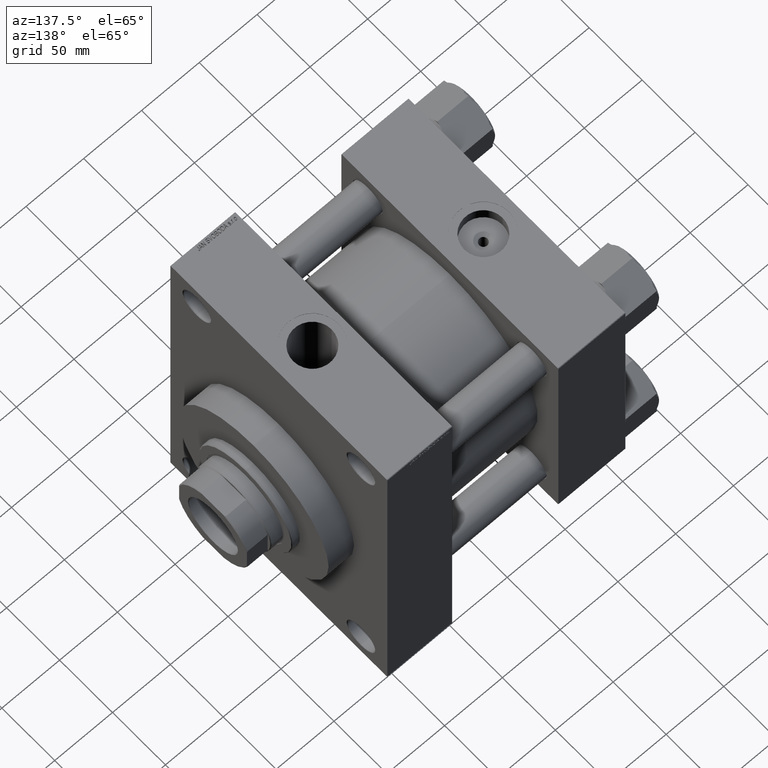
[diagram: clean part render]
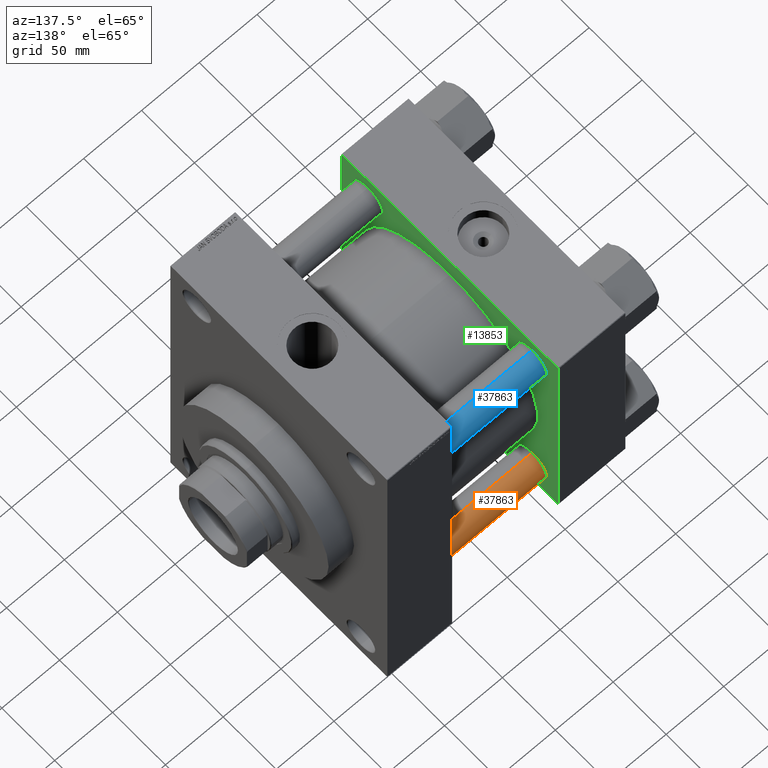
[diagram: same view with three faces highlighted in distinct colors, each labeled with its STEP entity id]
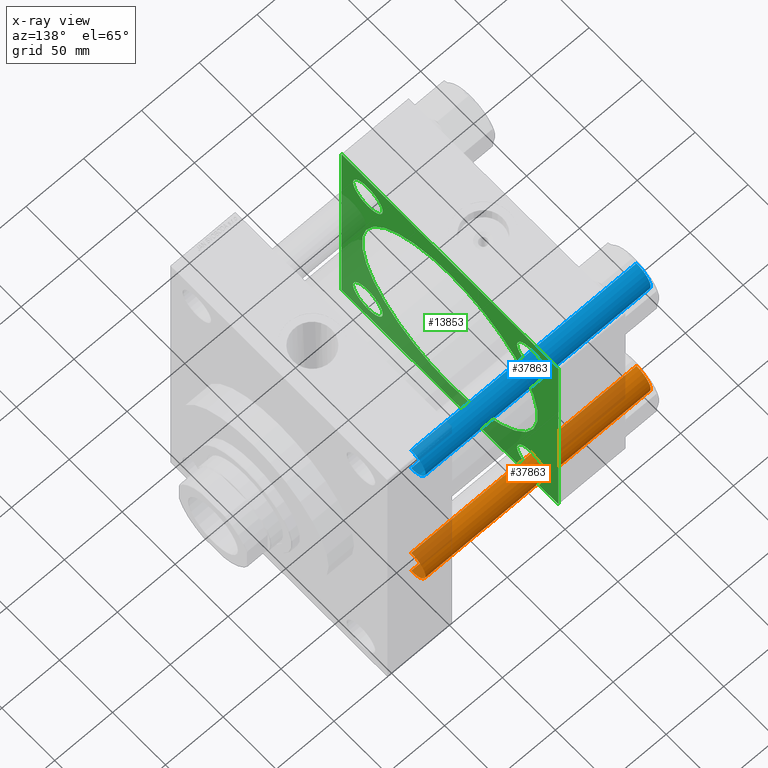
[diagram: x-ray of the same camera — body ghosted, the three highlighted faces saturated]
A machine part, auxiliary view with three faces highlighted in distinct colors.
The next image is the same camera in x-ray (body ghosted, the three faces saturated) — at least one of them is partly hidden behind the body in this view.
Their STEP definitions:

[orange] entity #37863 — the highlighted cylindrical surface (edge-blend (fillet) strip) has radius 13.5 mm, axis along (-1, -0, 0).
#2479 = DIRECTION ( 'NONE',  ( -0.000000000000000000, -0.000000000000000000, -1.000000000000000000 ) ) ;
#2563 = CARTESIAN_POINT ( 'NONE',  ( 13.50000000000000000, 1.653273178848926867E-15, 0.4999999999999726885 ) ) ;
#2925 = CARTESIAN_POINT ( 'NONE',  ( 0.000000000000000000, 0.000000000000000000, 195.5000000000000284 ) ) ;
#3588 = VERTEX_POINT ( 'NONE', #2563 ) ;
#3717 = CARTESIAN_POINT ( 'NONE',  ( 13.50000000000000000, 1.653273178848926867E-15, 195.5000000000000284 ) ) ;
#5716 = DIRECTION ( 'NONE',  ( -0.000000000000000000, -0.000000000000000000, -1.000000000000000000 ) ) ;
#6054 = EDGE_LOOP ( 'NONE', ( #43720, #7513, #44781, #25400 ) ) ;
#6235 = EDGE_CURVE ( 'NONE', #45424, #3588, #24687, .T. ) ;
#7470 = CIRCLE ( 'NONE', #25181, 13.50000000000000000 ) ;
#7513 = ORIENTED_EDGE ( 'NONE', *, *, #6235, .T. ) ;
#7681 = VERTEX_POINT ( 'NONE', #24001 ) ;
#8012 = DIRECTION ( 'NONE',  ( -0.000000000000000000, -0.000000000000000000, -1.000000000000000000 ) ) ;
#9249 = CYLINDRICAL_SURFACE ( 'NONE', #38365, 13.50000000000000000 ) ;
#10897 = EDGE_CURVE ( 'NONE', #3588, #7681, #11372, .T. ) ;
#11372 = CIRCLE ( 'NONE', #26767, 13.50000000000000000 ) ;
#12260 = LINE ( 'NONE', #19968, #27537 ) ;
#12616 = FACE_OUTER_BOUND ( 'NONE', #6054, .T. ) ;
#16092 = DIRECTION ( 'NONE',  ( -0.000000000000000000, -0.000000000000000000, 1.000000000000000000 ) ) ;
#19968 = CARTESIAN_POINT ( 'NONE',  ( -13.50000000000000000, 0.000000000000000000, 196.0000000000000000 ) ) ;
#21059 = CARTESIAN_POINT ( 'NONE',  ( 13.50000000000000000, 1.653273178848926867E-15, 196.0000000000000000 ) ) ;
#22208 = DIRECTION ( 'NONE',  ( 1.000000000000000000, 0.000000000000000000, 0.000000000000000000 ) ) ;
#24001 = CARTESIAN_POINT ( 'NONE',  ( -13.50000000000000000, 0.000000000000000000, 0.4999999999999726885 ) ) ;
#24687 = LINE ( 'NONE', #21059, #43520 ) ;
#25181 = AXIS2_PLACEMENT_3D ( 'NONE', #2925, #26292, #22208 ) ;
#25400 = ORIENTED_EDGE ( 'NONE', *, *, #32211, .F. ) ;
#26292 = DIRECTION ( 'NONE',  ( 0.000000000000000000, 0.000000000000000000, -1.000000000000000000 ) ) ;
#26767 = AXIS2_PLACEMENT_3D ( 'NONE', #34405, #16092, #37314 ) ;
#27537 = VECTOR ( 'NONE', #5716, 1000.000000000000000 ) ;
#29804 = EDGE_CURVE ( 'NONE', #31426, #45424, #7470, .T. ) ;
#31426 = VERTEX_POINT ( 'NONE', #39581 ) ;
#32211 = EDGE_CURVE ( 'NONE', #31426, #7681, #12260, .T. ) ;
#34405 = CARTESIAN_POINT ( 'NONE',  ( 0.000000000000000000, 0.000000000000000000, 0.4999999999999726885 ) ) ;
#37314 = DIRECTION ( 'NONE',  ( 1.000000000000000000, 0.000000000000000000, 0.000000000000000000 ) ) ;
#37863 = ADVANCED_FACE ( 'NONE', ( #12616 ), #9249, .T. ) ;
#38365 = AXIS2_PLACEMENT_3D ( 'NONE', #42253, #2479, #42487 ) ;
#39581 = CARTESIAN_POINT ( 'NONE',  ( -13.50000000000000000, 0.000000000000000000, 195.5000000000000284 ) ) ;
#42253 = CARTESIAN_POINT ( 'NONE',  ( 0.000000000000000000, 0.000000000000000000, 196.0000000000000000 ) ) ;
#42487 = DIRECTION ( 'NONE',  ( -1.000000000000000000, 0.000000000000000000, 0.000000000000000000 ) ) ;
#43520 = VECTOR ( 'NONE', #8012, 1000.000000000000000 ) ;
#43720 = ORIENTED_EDGE ( 'NONE', *, *, #29804, .T. ) ;
#44781 = ORIENTED_EDGE ( 'NONE', *, *, #10897, .T. ) ;
#45424 = VERTEX_POINT ( 'NONE', #3717 ) ;

[blue] entity #37863 — the highlighted cylindrical surface (edge-blend (fillet) strip) has radius 13.5 mm, axis along (1, -0, -0).
#2479 = DIRECTION ( 'NONE',  ( -0.000000000000000000, -0.000000000000000000, -1.000000000000000000 ) ) ;
#2563 = CARTESIAN_POINT ( 'NONE',  ( 13.50000000000000000, 1.653273178848926867E-15, 0.4999999999999726885 ) ) ;
#2925 = CARTESIAN_POINT ( 'NONE',  ( 0.000000000000000000, 0.000000000000000000, 195.5000000000000284 ) ) ;
#3588 = VERTEX_POINT ( 'NONE', #2563 ) ;
#3717 = CARTESIAN_POINT ( 'NONE',  ( 13.50000000000000000, 1.653273178848926867E-15, 195.5000000000000284 ) ) ;
#5716 = DIRECTION ( 'NONE',  ( -0.000000000000000000, -0.000000000000000000, -1.000000000000000000 ) ) ;
#6054 = EDGE_LOOP ( 'NONE', ( #43720, #7513, #44781, #25400 ) ) ;
#6235 = EDGE_CURVE ( 'NONE', #45424, #3588, #24687, .T. ) ;
#7470 = CIRCLE ( 'NONE', #25181, 13.50000000000000000 ) ;
#7513 = ORIENTED_EDGE ( 'NONE', *, *, #6235, .T. ) ;
#7681 = VERTEX_POINT ( 'NONE', #24001 ) ;
#8012 = DIRECTION ( 'NONE',  ( -0.000000000000000000, -0.000000000000000000, -1.000000000000000000 ) ) ;
#9249 = CYLINDRICAL_SURFACE ( 'NONE', #38365, 13.50000000000000000 ) ;
#10897 = EDGE_CURVE ( 'NONE', #3588, #7681, #11372, .T. ) ;
#11372 = CIRCLE ( 'NONE', #26767, 13.50000000000000000 ) ;
#12260 = LINE ( 'NONE', #19968, #27537 ) ;
#12616 = FACE_OUTER_BOUND ( 'NONE', #6054, .T. ) ;
#16092 = DIRECTION ( 'NONE',  ( -0.000000000000000000, -0.000000000000000000, 1.000000000000000000 ) ) ;
#19968 = CARTESIAN_POINT ( 'NONE',  ( -13.50000000000000000, 0.000000000000000000, 196.0000000000000000 ) ) ;
#21059 = CARTESIAN_POINT ( 'NONE',  ( 13.50000000000000000, 1.653273178848926867E-15, 196.0000000000000000 ) ) ;
#22208 = DIRECTION ( 'NONE',  ( 1.000000000000000000, 0.000000000000000000, 0.000000000000000000 ) ) ;
#24001 = CARTESIAN_POINT ( 'NONE',  ( -13.50000000000000000, 0.000000000000000000, 0.4999999999999726885 ) ) ;
#24687 = LINE ( 'NONE', #21059, #43520 ) ;
#25181 = AXIS2_PLACEMENT_3D ( 'NONE', #2925, #26292, #22208 ) ;
#25400 = ORIENTED_EDGE ( 'NONE', *, *, #32211, .F. ) ;
#26292 = DIRECTION ( 'NONE',  ( 0.000000000000000000, 0.000000000000000000, -1.000000000000000000 ) ) ;
#26767 = AXIS2_PLACEMENT_3D ( 'NONE', #34405, #16092, #37314 ) ;
#27537 = VECTOR ( 'NONE', #5716, 1000.000000000000000 ) ;
#29804 = EDGE_CURVE ( 'NONE', #31426, #45424, #7470, .T. ) ;
#31426 = VERTEX_POINT ( 'NONE', #39581 ) ;
#32211 = EDGE_CURVE ( 'NONE', #31426, #7681, #12260, .T. ) ;
#34405 = CARTESIAN_POINT ( 'NONE',  ( 0.000000000000000000, 0.000000000000000000, 0.4999999999999726885 ) ) ;
#37314 = DIRECTION ( 'NONE',  ( 1.000000000000000000, 0.000000000000000000, 0.000000000000000000 ) ) ;
#37863 = ADVANCED_FACE ( 'NONE', ( #12616 ), #9249, .T. ) ;
#38365 = AXIS2_PLACEMENT_3D ( 'NONE', #42253, #2479, #42487 ) ;
#39581 = CARTESIAN_POINT ( 'NONE',  ( -13.50000000000000000, 0.000000000000000000, 195.5000000000000284 ) ) ;
#42253 = CARTESIAN_POINT ( 'NONE',  ( 0.000000000000000000, 0.000000000000000000, 196.0000000000000000 ) ) ;
#42487 = DIRECTION ( 'NONE',  ( -1.000000000000000000, 0.000000000000000000, 0.000000000000000000 ) ) ;
#43520 = VECTOR ( 'NONE', #8012, 1000.000000000000000 ) ;
#43720 = ORIENTED_EDGE ( 'NONE', *, *, #29804, .T. ) ;
#44781 = ORIENTED_EDGE ( 'NONE', *, *, #10897, .T. ) ;
#45424 = VERTEX_POINT ( 'NONE', #3717 ) ;

[green] entity #13853 — the highlighted planar face has unit normal (-1, 0, 0).
#14 = EDGE_CURVE ( 'NONE', #22305, #2650, #35765, .T. ) ;
#61 = DIRECTION ( 'NONE',  ( -0.000000000000000000, -0.7071067811865376918, -0.7071067811865574537 ) ) ;
#864 = CARTESIAN_POINT ( 'NONE',  ( 57.99999999999999289, -2.602085213965210642E-15, 83.00000000000000000 ) ) ;
#1102 = FACE_BOUND ( 'NONE', #7566, .T. ) ;
#1175 = CARTESIAN_POINT ( 'NONE',  ( 58.00000000000000000, -77.44999999999997442, 91.44999999999984652 ) ) ;
#2038 = EDGE_CURVE ( 'NONE', #46114, #38964, #36724, .T. ) ;
#2241 = ORIENTED_EDGE ( 'NONE', *, *, #14, .T. ) ;
#2579 = EDGE_CURVE ( 'NONE', #11468, #31928, #26985, .T. ) ;
#2650 = VERTEX_POINT ( 'NONE', #1175 ) ;
#2910 = VERTEX_POINT ( 'NONE', #12235 ) ;
#3231 = CARTESIAN_POINT ( 'NONE',  ( 58.00000000000000000, -77.44999999999997442, -77.45000000000000284 ) ) ;
#3425 = CARTESIAN_POINT ( 'NONE',  ( 58.00000000000000000, 102.5000000000000000, -101.9999999999999005 ) ) ;
#3898 = CIRCLE ( 'NONE', #20026, 13.99999999999984546 ) ;
#4002 = CARTESIAN_POINT ( 'NONE',  ( 57.99999999999999289, -2.602085213965210642E-15, 0.000000000000000000 ) ) ;
#4538 = CIRCLE ( 'NONE', #19958, 13.99999999999979039 ) ;
#4773 = ORIENTED_EDGE ( 'NONE', *, *, #25898, .F. ) ;
#4959 = FACE_OUTER_BOUND ( 'NONE', #10356, .T. ) ;
#5169 = VERTEX_POINT ( 'NONE', #18917 ) ;
#5612 = DIRECTION ( 'NONE',  ( 0.000000000000000000, 0.000000000000000000, -1.000000000000000000 ) ) ;
#6492 = VERTEX_POINT ( 'NONE', #27640 ) ;
#6593 = CARTESIAN_POINT ( 'NONE',  ( 58.00000000000000000, 77.45000000000000284, 77.44999999999998863 ) ) ;
#6809 = DIRECTION ( 'NONE',  ( -0.000000000000000000, 0.7071067811865474617, 0.7071067811865474617 ) ) ;
#7393 = EDGE_CURVE ( 'NONE', #6492, #21111, #9712, .T. ) ;
#7541 = CARTESIAN_POINT ( 'NONE',  ( 58.00000000000000000, -101.9999999999999147, -102.4999999999999716 ) ) ;
#7566 = EDGE_LOOP ( 'NONE', ( #2241, #20487 ) ) ;
#8035 = DIRECTION ( 'NONE',  ( 0.000000000000000000, 0.000000000000000000, 1.000000000000000000 ) ) ;
#8139 = CARTESIAN_POINT ( 'NONE',  ( 58.00000000000000000, 77.45000000000000284, -77.44999999999998863 ) ) ;
#8297 = DIRECTION ( 'NONE',  ( -1.000000000000000000, 0.000000000000000000, -0.000000000000000000 ) ) ;
#8671 = CARTESIAN_POINT ( 'NONE',  ( 58.00000000000000000, 102.5000000000000000, -102.4999999999999289 ) ) ;
#8848 = CIRCLE ( 'NONE', #13454, 83.00000000000000000 ) ;
#9092 = CARTESIAN_POINT ( 'NONE',  ( 57.99999999999999289, 7.562483218957820855E-15, -83.00000000000000000 ) ) ;
#9253 = LINE ( 'NONE', #38649, #36629 ) ;
#9712 = CIRCLE ( 'NONE', #36649, 13.99999999999979039 ) ;
#9953 = EDGE_CURVE ( 'NONE', #43658, #2910, #33660, .T. ) ;
#10067 = CARTESIAN_POINT ( 'NONE',  ( 58.00000000000000000, -77.44999999999997442, 77.45000000000000284 ) ) ;
#10089 = VECTOR ( 'NONE', #11159, 1000.000000000000114 ) ;
#10356 = EDGE_LOOP ( 'NONE', ( #17111, #41573, #19659, #17149, #46923, #20956, #31396, #29280 ) ) ;
#10600 = VERTEX_POINT ( 'NONE', #17110 ) ;
#10712 = DIRECTION ( 'NONE',  ( 0.000000000000000000, 0.000000000000000000, 1.000000000000000000 ) ) ;
#10988 = EDGE_CURVE ( 'NONE', #29265, #32296, #28370, .T. ) ;
#11159 = DIRECTION ( 'NONE',  ( 0.000000000000000000, 0.7071067811865474617, -0.7071067811865474617 ) ) ;
#11196 = EDGE_CURVE ( 'NONE', #10600, #5169, #39086, .T. ) ;
#11468 = VERTEX_POINT ( 'NONE', #37865 ) ;
#11814 = CARTESIAN_POINT ( 'NONE',  ( 58.00000000000000000, 77.45000000000000284, -77.44999999999998863 ) ) ;
#12057 = DIRECTION ( 'NONE',  ( 0.000000000000000000, -1.000000000000000000, -2.030895776753335460E-16 ) ) ;
#12123 = AXIS2_PLACEMENT_3D ( 'NONE', #8139, #22856, #24934 ) ;
#12182 = EDGE_CURVE ( 'NONE', #11468, #32296, #28271, .T. ) ;
#12235 = CARTESIAN_POINT ( 'NONE',  ( 58.00000000000000000, 77.45000000000000284, -91.44999999999977547 ) ) ;
#12280 = DIRECTION ( 'NONE',  ( -1.000000000000000000, 0.000000000000000000, -0.000000000000000000 ) ) ;
#12899 = AXIS2_PLACEMENT_3D ( 'NONE', #22576, #45187, #18956 ) ;
#12900 = VECTOR ( 'NONE', #41091, 1000.000000000000114 ) ;
#13454 = AXIS2_PLACEMENT_3D ( 'NONE', #25652, #40822, #8035 ) ;
#13853 = ADVANCED_FACE ( 'NONE', ( #26913, #23782, #1102, #30776, #16540, #4959 ), #35093, .F. ) ;
#14087 = DIRECTION ( 'NONE',  ( -1.000000000000000000, 0.000000000000000000, -0.000000000000000000 ) ) ;
#14253 = VERTEX_POINT ( 'NONE', #41439 ) ;
#14289 = EDGE_CURVE ( 'NONE', #2910, #43658, #4538, .T. ) ;
#15197 = DIRECTION ( 'NONE',  ( 0.000000000000000000, 0.000000000000000000, 1.000000000000000000 ) ) ;
#15227 = VECTOR ( 'NONE', #43061, 1000.000000000000000 ) ;
#15370 = VERTEX_POINT ( 'NONE', #864 ) ;
#16540 = FACE_BOUND ( 'NONE', #34985, .T. ) ;
#16872 = EDGE_LOOP ( 'NONE', ( #36492, #19487 ) ) ;
#17110 = CARTESIAN_POINT ( 'NONE',  ( 58.00000000000000000, -77.44999999999997442, -63.45000000000015916 ) ) ;
#17111 = ORIENTED_EDGE ( 'NONE', *, *, #2579, .F. ) ;
#17149 = ORIENTED_EDGE ( 'NONE', *, *, #35508, .T. ) ;
#17987 = CARTESIAN_POINT ( 'NONE',  ( 58.00000000000000000, -101.9999999999999716, 102.4999999999999858 ) ) ;
#18001 = EDGE_LOOP ( 'NONE', ( #26238, #45645 ) ) ;
#18917 = CARTESIAN_POINT ( 'NONE',  ( 58.00000000000000000, -77.44999999999997442, -91.44999999999984652 ) ) ;
#18956 = DIRECTION ( 'NONE',  ( 0.000000000000000000, 0.000000000000000000, 1.000000000000000000 ) ) ;
#19487 = ORIENTED_EDGE ( 'NONE', *, *, #9953, .T. ) ;
#19535 = CARTESIAN_POINT ( 'NONE',  ( 58.00000000000000000, 102.5000000000000000, 102.0000000000000142 ) ) ;
#19617 = DIRECTION ( 'NONE',  ( 0.000000000000000000, 0.000000000000000000, 1.000000000000000000 ) ) ;
#19659 = ORIENTED_EDGE ( 'NONE', *, *, #10988, .F. ) ;
#19958 = AXIS2_PLACEMENT_3D ( 'NONE', #11814, #12280, #15197 ) ;
#20026 = AXIS2_PLACEMENT_3D ( 'NONE', #34558, #8297, #19617 ) ;
#20311 = EDGE_CURVE ( 'NONE', #21111, #6492, #43101, .T. ) ;
#20395 = CARTESIAN_POINT ( 'NONE',  ( 58.00000000000000000, 0.000000000000000000, 0.000000000000000000 ) ) ;
#20487 = ORIENTED_EDGE ( 'NONE', *, *, #41378, .T. ) ;
#20956 = ORIENTED_EDGE ( 'NONE', *, *, #26838, .T. ) ;
#21111 = VERTEX_POINT ( 'NONE', #42282 ) ;
#21203 = EDGE_CURVE ( 'NONE', #5169, #10600, #23128, .T. ) ;
#21445 = VERTEX_POINT ( 'NONE', #34531 ) ;
#21531 = LINE ( 'NONE', #29007, #25828 ) ;
#22305 = VERTEX_POINT ( 'NONE', #38968 ) ;
#22576 = CARTESIAN_POINT ( 'NONE',  ( 58.00000000000000000, -77.44999999999997442, -77.45000000000000284 ) ) ;
#22856 = DIRECTION ( 'NONE',  ( -1.000000000000000000, 0.000000000000000000, -0.000000000000000000 ) ) ;
#23128 = CIRCLE ( 'NONE', #41584, 13.99999999999984546 ) ;
#23782 = FACE_BOUND ( 'NONE', #16872, .T. ) ;
#24003 = AXIS2_PLACEMENT_3D ( 'NONE', #4002, #33180, #40636 ) ;
#24286 = DIRECTION ( 'NONE',  ( -1.000000000000000000, 0.000000000000000000, -0.000000000000000000 ) ) ;
#24934 = DIRECTION ( 'NONE',  ( 0.000000000000000000, 0.000000000000000000, 1.000000000000000000 ) ) ;
#25406 = CARTESIAN_POINT ( 'NONE',  ( 58.00000000000000000, 102.5000000000000000, 102.5000000000000142 ) ) ;
#25652 = CARTESIAN_POINT ( 'NONE',  ( 57.99999999999999289, -2.602085213965210642E-15, 0.000000000000000000 ) ) ;
#25828 = VECTOR ( 'NONE', #61, 999.9999999999998863 ) ;
#25898 = EDGE_CURVE ( 'NONE', #15370, #37312, #8848, .T. ) ;
#26238 = ORIENTED_EDGE ( 'NONE', *, *, #7393, .T. ) ;
#26620 = CARTESIAN_POINT ( 'NONE',  ( 58.00000000000000000, 102.0000000000000000, 102.5000000000000142 ) ) ;
#26741 = EDGE_CURVE ( 'NONE', #14253, #21445, #9253, .T. ) ;
#26838 = EDGE_CURVE ( 'NONE', #38964, #14253, #21531, .T. ) ;
#26913 = FACE_BOUND ( 'NONE', #35220, .T. ) ;
#26985 = LINE ( 'NONE', #8671, #45710 ) ;
#27640 = CARTESIAN_POINT ( 'NONE',  ( 58.00000000000000000, 77.45000000000000284, 63.45000000000020179 ) ) ;
#28271 = LINE ( 'NONE', #3425, #45258 ) ;
#28370 = LINE ( 'NONE', #46437, #15227 ) ;
#28868 = CARTESIAN_POINT ( 'NONE',  ( 58.00000000000000000, 102.5000000000000000, -101.9999999999999005 ) ) ;
#29007 = CARTESIAN_POINT ( 'NONE',  ( 58.00000000000000000, -102.4999999999999858, 101.9999999999999574 ) ) ;
#29265 = VERTEX_POINT ( 'NONE', #19535 ) ;
#29280 = ORIENTED_EDGE ( 'NONE', *, *, #42507, .T. ) ;
#30776 = FACE_BOUND ( 'NONE', #18001, .T. ) ;
#31396 = ORIENTED_EDGE ( 'NONE', *, *, #26741, .T. ) ;
#31492 = DIRECTION ( 'NONE',  ( -0.000000000000000000, 0.000000000000000000, 1.000000000000000000 ) ) ;
#31928 = VERTEX_POINT ( 'NONE', #38275 ) ;
#32296 = VERTEX_POINT ( 'NONE', #28868 ) ;
#33180 = DIRECTION ( 'NONE',  ( 1.000000000000000000, -0.000000000000000000, 0.000000000000000000 ) ) ;
#33422 = VECTOR ( 'NONE', #44175, 1000.000000000000000 ) ;
#33660 = CIRCLE ( 'NONE', #12123, 13.99999999999979039 ) ;
#33739 = CARTESIAN_POINT ( 'NONE',  ( 58.00000000000000000, 102.0000000000000000, 102.5000000000000142 ) ) ;
#34229 = DIRECTION ( 'NONE',  ( 0.000000000000000000, 0.000000000000000000, 1.000000000000000000 ) ) ;
#34240 = ORIENTED_EDGE ( 'NONE', *, *, #21203, .T. ) ;
#34387 = DIRECTION ( 'NONE',  ( -1.000000000000000000, 0.000000000000000000, -0.000000000000000000 ) ) ;
#34531 = CARTESIAN_POINT ( 'NONE',  ( 58.00000000000000000, -102.4999999999999858, -101.9999999999999005 ) ) ;
#34558 = CARTESIAN_POINT ( 'NONE',  ( 58.00000000000000000, -77.44999999999997442, 77.45000000000000284 ) ) ;
#34713 = DIRECTION ( 'NONE',  ( -1.000000000000000000, 0.000000000000000000, -0.000000000000000000 ) ) ;
#34969 = ORIENTED_EDGE ( 'NONE', *, *, #11196, .T. ) ;
#34985 = EDGE_LOOP ( 'NONE', ( #4773, #40753 ) ) ;
#35093 = PLANE ( 'NONE',  #43015 ) ;
#35220 = EDGE_LOOP ( 'NONE', ( #34240, #34969 ) ) ;
#35508 = EDGE_CURVE ( 'NONE', #29265, #46114, #45406, .T. ) ;
#35587 = CARTESIAN_POINT ( 'NONE',  ( 58.00000000000000000, 77.45000000000000284, -63.45000000000020179 ) ) ;
#35765 = CIRCLE ( 'NONE', #45744, 13.99999999999984546 ) ;
#35768 = DIRECTION ( 'NONE',  ( 0.000000000000000000, 0.000000000000000000, 1.000000000000000000 ) ) ;
#35847 = DIRECTION ( 'NONE',  ( 0.000000000000000000, 0.000000000000000000, 1.000000000000000000 ) ) ;
#36481 = LINE ( 'NONE', #7541, #10089 ) ;
#36492 = ORIENTED_EDGE ( 'NONE', *, *, #14289, .T. ) ;
#36629 = VECTOR ( 'NONE', #5612, 1000.000000000000000 ) ;
#36649 = AXIS2_PLACEMENT_3D ( 'NONE', #38556, #34713, #34229 ) ;
#36724 = LINE ( 'NONE', #25406, #33422 ) ;
#37103 = CIRCLE ( 'NONE', #24003, 83.00000000000000000 ) ;
#37312 = VERTEX_POINT ( 'NONE', #9092 ) ;
#37713 = AXIS2_PLACEMENT_3D ( 'NONE', #6593, #46609, #35768 ) ;
#37865 = CARTESIAN_POINT ( 'NONE',  ( 58.00000000000000000, 101.9999999999999716, -102.4999999999999289 ) ) ;
#38275 = CARTESIAN_POINT ( 'NONE',  ( 58.00000000000000000, -101.9999999999999147, -102.4999999999999716 ) ) ;
#38556 = CARTESIAN_POINT ( 'NONE',  ( 58.00000000000000000, 77.45000000000000284, 77.44999999999998863 ) ) ;
#38649 = CARTESIAN_POINT ( 'NONE',  ( 58.00000000000000000, -102.4999999999999858, 102.4999999999999858 ) ) ;
#38964 = VERTEX_POINT ( 'NONE', #17987 ) ;
#38968 = CARTESIAN_POINT ( 'NONE',  ( 58.00000000000000000, -77.44999999999997442, 63.45000000000015916 ) ) ;
#39086 = CIRCLE ( 'NONE', #12899, 13.99999999999984546 ) ;
#40636 = DIRECTION ( 'NONE',  ( 0.000000000000000000, 0.000000000000000000, 1.000000000000000000 ) ) ;
#40753 = ORIENTED_EDGE ( 'NONE', *, *, #44550, .F. ) ;
#40822 = DIRECTION ( 'NONE',  ( 1.000000000000000000, -0.000000000000000000, 0.000000000000000000 ) ) ;
#41091 = DIRECTION ( 'NONE',  ( 0.000000000000000000, -0.7071067811865474617, 0.7071067811865474617 ) ) ;
#41378 = EDGE_CURVE ( 'NONE', #2650, #22305, #3898, .T. ) ;
#41439 = CARTESIAN_POINT ( 'NONE',  ( 58.00000000000000000, -102.4999999999999858, 101.9999999999999574 ) ) ;
#41573 = ORIENTED_EDGE ( 'NONE', *, *, #12182, .T. ) ;
#41584 = AXIS2_PLACEMENT_3D ( 'NONE', #3231, #14087, #10712 ) ;
#42282 = CARTESIAN_POINT ( 'NONE',  ( 58.00000000000000000, 77.45000000000000284, 91.44999999999977547 ) ) ;
#42507 = EDGE_CURVE ( 'NONE', #21445, #31928, #36481, .T. ) ;
#43015 = AXIS2_PLACEMENT_3D ( 'NONE', #20395, #34387, #31492 ) ;
#43061 = DIRECTION ( 'NONE',  ( 0.000000000000000000, 0.000000000000000000, -1.000000000000000000 ) ) ;
#43101 = CIRCLE ( 'NONE', #37713, 13.99999999999979039 ) ;
#43658 = VERTEX_POINT ( 'NONE', #35587 ) ;
#44175 = DIRECTION ( 'NONE',  ( 0.000000000000000000, -1.000000000000000000, -1.353930517835556973E-16 ) ) ;
#44550 = EDGE_CURVE ( 'NONE', #37312, #15370, #37103, .T. ) ;
#45187 = DIRECTION ( 'NONE',  ( -1.000000000000000000, 0.000000000000000000, -0.000000000000000000 ) ) ;
#45258 = VECTOR ( 'NONE', #6809, 1000.000000000000114 ) ;
#45406 = LINE ( 'NONE', #26620, #12900 ) ;
#45645 = ORIENTED_EDGE ( 'NONE', *, *, #20311, .T. ) ;
#45710 = VECTOR ( 'NONE', #12057, 1000.000000000000000 ) ;
#45744 = AXIS2_PLACEMENT_3D ( 'NONE', #10067, #24286, #35847 ) ;
#46114 = VERTEX_POINT ( 'NONE', #33739 ) ;
#46437 = CARTESIAN_POINT ( 'NONE',  ( 58.00000000000000000, 102.5000000000000000, 102.5000000000000142 ) ) ;
#46609 = DIRECTION ( 'NONE',  ( -1.000000000000000000, 0.000000000000000000, -0.000000000000000000 ) ) ;
#46923 = ORIENTED_EDGE ( 'NONE', *, *, #2038, .T. ) ;